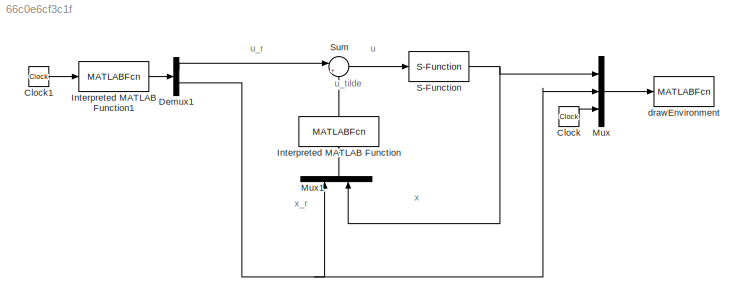
MODEL slx_66c0e6cf3c1f
KIND model
CONFIG AbsTol = auto
CONFIG FixedStep = auto
CONFIG InitFcn = param
CONFIG MaxStep = auto
CONFIG MinStep = auto
CONFIG RelTol = 1e-3
CONFIG SampleTimeConstraint = Unconstrained
CONFIG Solver = FixedStepAuto
CONFIG SolverMode = Auto
CONFIG SolverName = FixedStepAuto
CONFIG StartTime = 0.0
CONFIG StopTime = P.T
BLOCK [Clock] Clock
BLOCK [Clock] Clock1
BLOCK [Demux] Demux1
  DisplayOption = bar
  Outputs = [2 6]
  Ports = [1, 2]
BLOCK [MATLABFcn] Interpreted MATLAB Function
  MATLABFcn = ctrl(u,P)
  OutputDimensions = 2
  Ports = [1, 1]
  SampleTime = .01
BLOCK [MATLABFcn] Interpreted MATLAB Function1
  MATLABFcn = trajectory(u, P)
  OutputDimensions = 8
  Ports = [1, 1]
BLOCK [Mux] Mux
  DisplayOption = bar
  Inputs = 3
  Ports = [3, 1]
BLOCK [Mux] Mux1
  DisplayOption = bar
  Inputs = 2
  Ports = [2, 1]
BLOCK [S-Function] S-Function
  EnableBusSupport = off
  FunctionName = robot
  Parameters = P
  Ports = [1, 1]
  SFunctionDeploymentMode = off
BLOCK [Sum] Sum
  IconShape = round
  InputSameDT = off
  Inputs = |++
  OutDataTypeStr = Inherit: Inherit via internal rule
  Ports = [2, 1]
  SaturateOnIntegerOverflow = off
BLOCK [MATLABFcn] drawEnvironment
  MATLABFcn = drawEnvironment(u,P)
  OutputDimensions = 0
  Ports = [1]
ANNOTATION (root): u
ANNOTATION (root): u_r
ANNOTATION (root): u_tilde
ANNOTATION (root): x
ANNOTATION (root): x_r
LINE Clock1:1 -> Interpreted MATLAB Function1:1
LINE Clock:1 -> Mux:3
LINE Demux1:1 -> Sum:1
NET Demux1:2 -> Mux1:1, Mux:2
LINE Interpreted MATLAB Function1:1 -> Demux1:1
LINE Interpreted MATLAB Function:1 -> Sum:2
LINE Mux1:1 -> Interpreted MATLAB Function:1
LINE Mux:1 -> drawEnvironment:1
NET S-Function:1 -> Mux1:2, Mux:1
LINE Sum:1 -> S-Function:1
note: NET lines group one-source signal fan-out (src -> all destinations, sorted); 1:1 wires keep LINE
